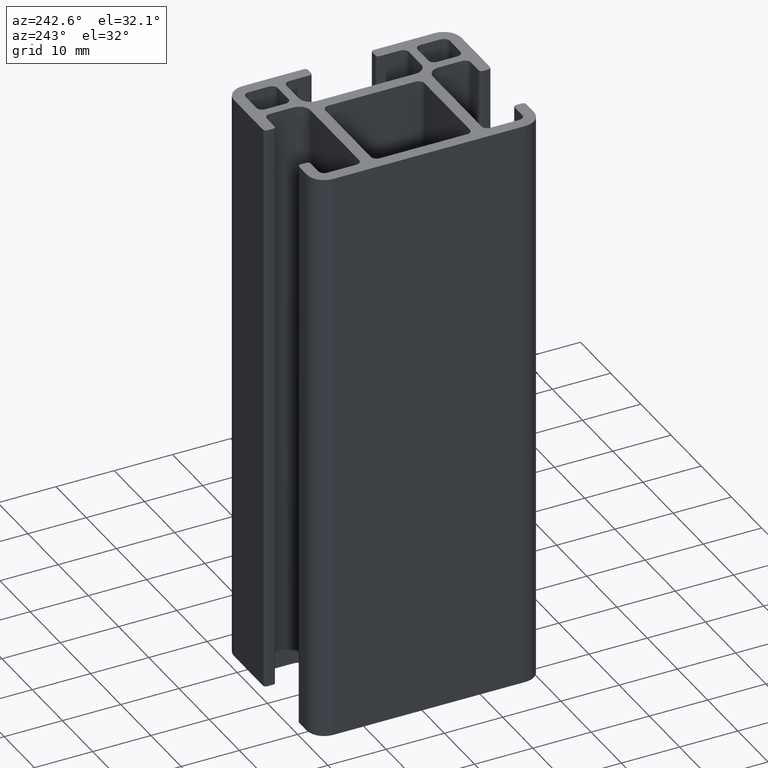
[diagram: clean part render]
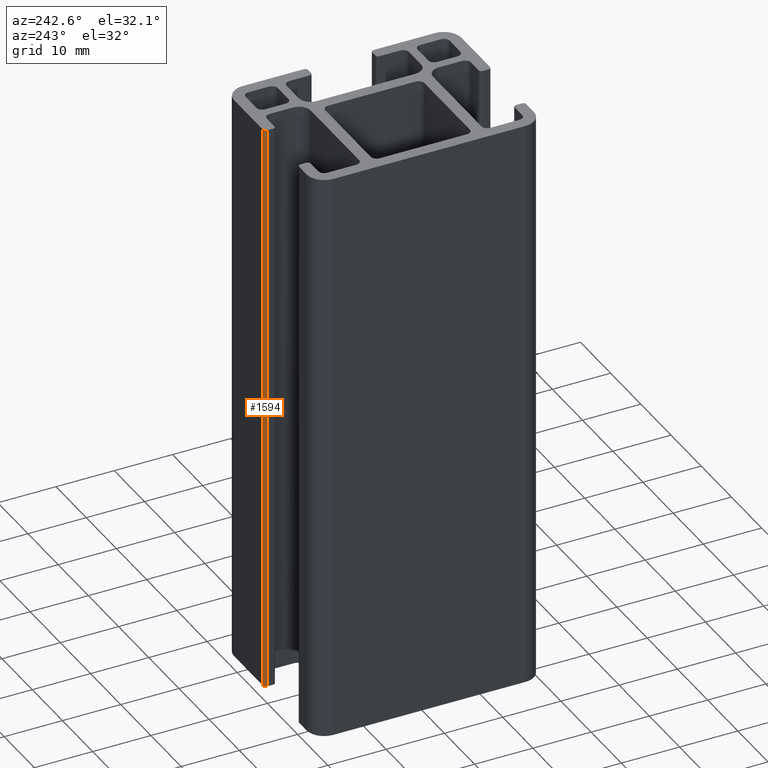
[diagram: same view with one face highlighted and labeled with its STEP entity id]
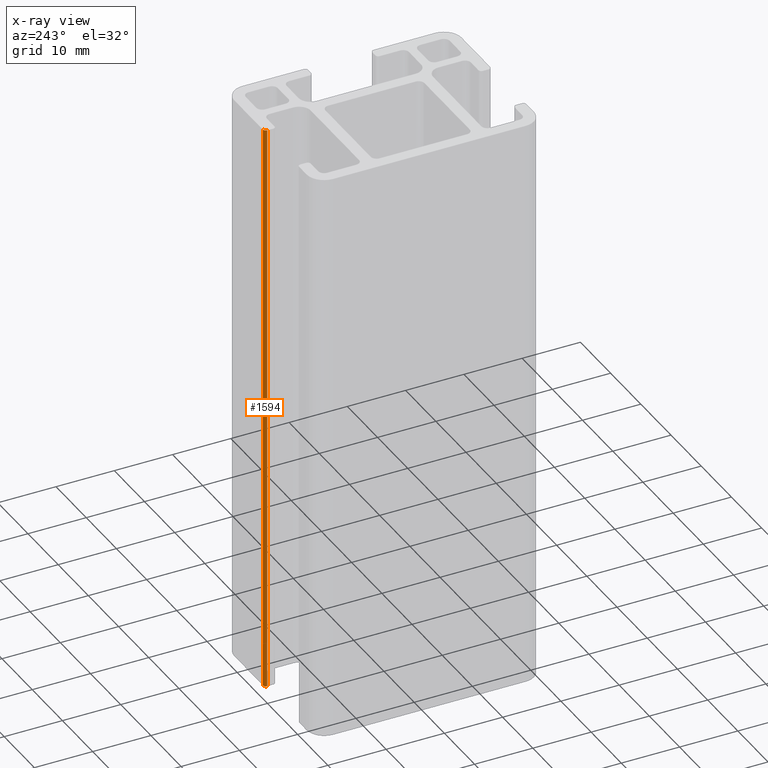
[diagram: x-ray of the same camera — body ghosted, the highlighted face saturated]
A machine part, auxiliary view. The second image highlights one B-rep face of the part: STEP entity #1594.
The next image is the same camera in x-ray: the body ghosted, the highlighted face saturated — about 0% of this face is hidden behind the body in this view.
In plain terms, the highlighted cylindrical surface (edge-blend (fillet) strip) has radius 0.5 mm, axis along (0, 0, 1).
Its self-contained STEP definition (entity closure, byte-faithful):
#63=CIRCLE('',#1721,0.5);
#64=CIRCLE('',#1722,0.5);
#122=CYLINDRICAL_SURFACE('',#1720,0.5);
#182=FACE_OUTER_BOUND('',#264,.T.);
#264=EDGE_LOOP('',(#1195,#1196,#1197,#1198));
#394=LINE('',#2543,#554);
#395=LINE('',#2546,#555);
#554=VECTOR('',#2054,100.);
#555=VECTOR('',#2057,100.);
#717=VERTEX_POINT('',#2539);
#718=VERTEX_POINT('',#2540);
#719=VERTEX_POINT('',#2542);
#720=VERTEX_POINT('',#2544);
#916=EDGE_CURVE('',#717,#718,#63,.T.);
#917=EDGE_CURVE('',#717,#719,#394,.T.);
#918=EDGE_CURVE('',#720,#719,#64,.T.);
#919=EDGE_CURVE('',#720,#718,#395,.T.);
#1195=ORIENTED_EDGE('',*,*,#916,.F.);
#1196=ORIENTED_EDGE('',*,*,#917,.T.);
#1197=ORIENTED_EDGE('',*,*,#918,.F.);
#1198=ORIENTED_EDGE('',*,*,#919,.T.);
#1594=ADVANCED_FACE('',(#182),#122,.T.);
#1720=AXIS2_PLACEMENT_3D('',#2538,#2050,#2051);
#1721=AXIS2_PLACEMENT_3D('',#2541,#2052,#2053);
#1722=AXIS2_PLACEMENT_3D('',#2545,#2055,#2056);
#2050=DIRECTION('center_axis',(0.,0.,1.));
#2051=DIRECTION('ref_axis',(1.33226762955015E-14,-1.,0.));
#2052=DIRECTION('center_axis',(0.,0.,1.));
#2053=DIRECTION('ref_axis',(1.33226762955015E-14,-1.,0.));
#2054=DIRECTION('',(0.,0.,-1.));
#2055=DIRECTION('center_axis',(0.,0.,-1.));
#2056=DIRECTION('ref_axis',(1.33226762955015E-14,-1.,0.));
#2057=DIRECTION('',(0.,0.,1.));
#2538=CARTESIAN_POINT('Origin',(2.50000000000001,19.,0.));
#2539=CARTESIAN_POINT('',(2.5,19.5,100.));
#2540=CARTESIAN_POINT('',(2.00000000000001,19.,100.));
#2541=CARTESIAN_POINT('Origin',(2.50000000000001,19.,100.));
#2542=CARTESIAN_POINT('',(2.5,19.5,0.));
#2543=CARTESIAN_POINT('',(2.50000000000001,19.5,0.));
#2544=CARTESIAN_POINT('',(2.00000000000001,19.,0.));
#2545=CARTESIAN_POINT('Origin',(2.50000000000001,19.,0.));
#2546=CARTESIAN_POINT('',(2.00000000000001,19.,0.));